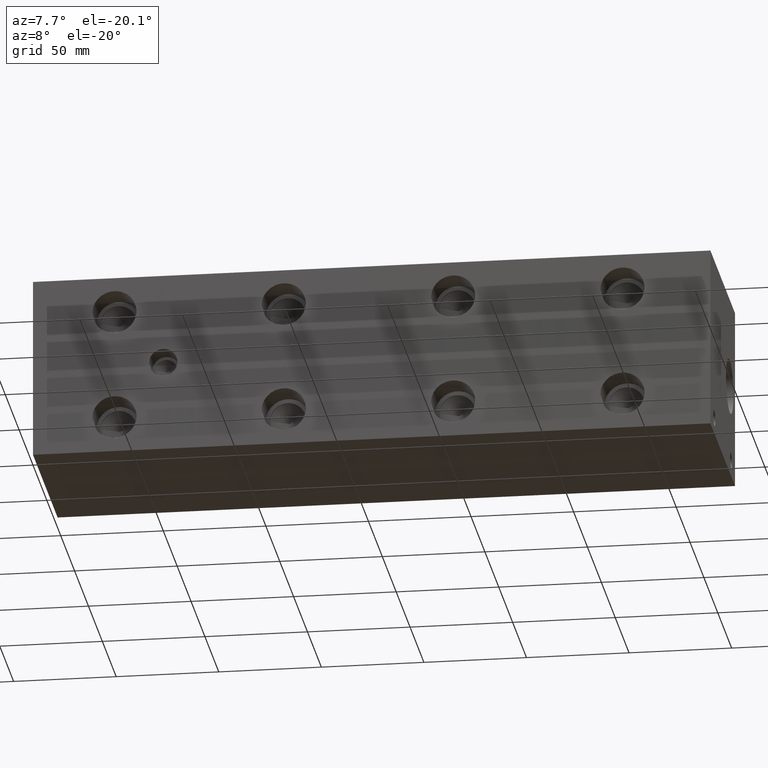
[diagram: clean part render]
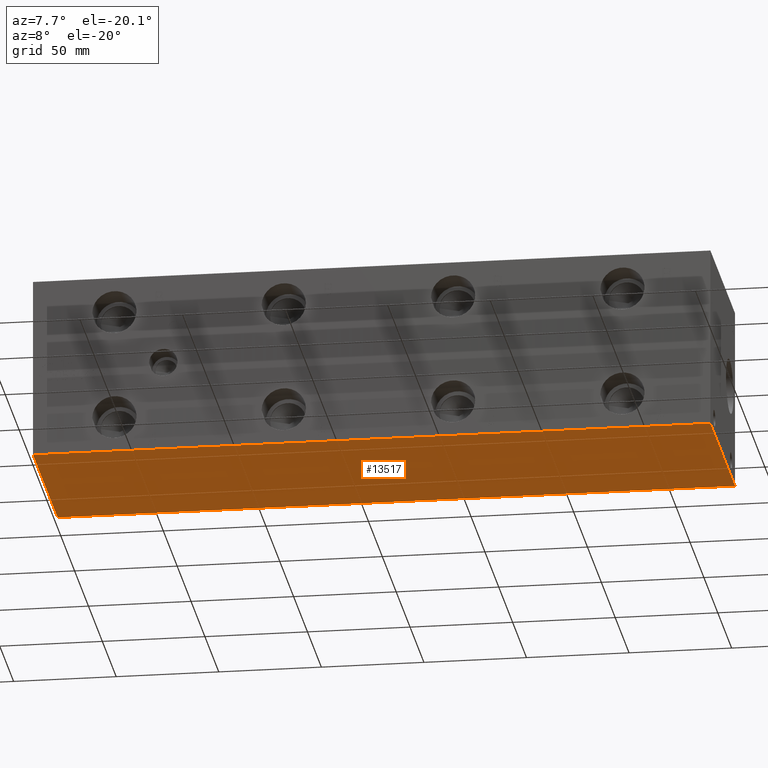
[diagram: same view with one face highlighted and labeled with its STEP entity id]
A machine part, auxiliary view. The second image highlights one B-rep face of the part: STEP entity #13517.
In plain terms, the highlighted planar face has unit normal (0, 0, 1).
Its self-contained STEP definition (entity closure, byte-faithful):
#1765=FACE_OUTER_BOUND('',#2589,.T.);
#2589=EDGE_LOOP('',(#11914,#11915,#11916,#11917));
#2646=LINE('',#17420,#3875);
#2933=LINE('',#19511,#4162);
#3814=LINE('',#23267,#5043);
#3817=LINE('',#23272,#5046);
#3875=VECTOR('',#14429,10.);
#4162=VECTOR('',#14878,10.);
#5043=VECTOR('',#17153,10.);
#5046=VECTOR('',#17158,10.);
#5096=VERTEX_POINT('',#17418);
#5097=VERTEX_POINT('',#17419);
#5412=VERTEX_POINT('',#19510);
#6342=VERTEX_POINT('',#23266);
#6416=EDGE_CURVE('',#5096,#5097,#2646,.T.);
#6885=EDGE_CURVE('',#5097,#5412,#2933,.T.);
#8197=EDGE_CURVE('',#6342,#5096,#3814,.T.);
#8200=EDGE_CURVE('',#5412,#6342,#3817,.T.);
#11914=ORIENTED_EDGE('',*,*,#6885,.F.);
#11915=ORIENTED_EDGE('',*,*,#6416,.F.);
#11916=ORIENTED_EDGE('',*,*,#8197,.F.);
#11917=ORIENTED_EDGE('',*,*,#8200,.F.);
#12312=PLANE('',#14332);
#13517=ADVANCED_FACE('',(#1765),#12312,.F.);
#14332=AXIS2_PLACEMENT_3D('',#23276,#17164,#17165);
#14429=DIRECTION('',(0.,-1.,0.));
#14878=DIRECTION('',(1.,0.,0.));
#17153=DIRECTION('',(-1.,0.,0.));
#17158=DIRECTION('',(0.,1.,0.));
#17164=DIRECTION('center_axis',(0.,0.,1.));
#17165=DIRECTION('ref_axis',(1.,0.,0.));
#17418=CARTESIAN_POINT('',(0.,88.9,0.));
#17419=CARTESIAN_POINT('',(0.,0.,0.));
#17420=CARTESIAN_POINT('',(0.,88.9,0.));
#19510=CARTESIAN_POINT('',(330.2,0.,0.));
#19511=CARTESIAN_POINT('',(0.,0.,0.));
#23266=CARTESIAN_POINT('',(330.2,88.9,0.));
#23267=CARTESIAN_POINT('',(330.2,88.9,0.));
#23272=CARTESIAN_POINT('',(330.2,0.,0.));
#23276=CARTESIAN_POINT('Origin',(165.1,44.45,0.));